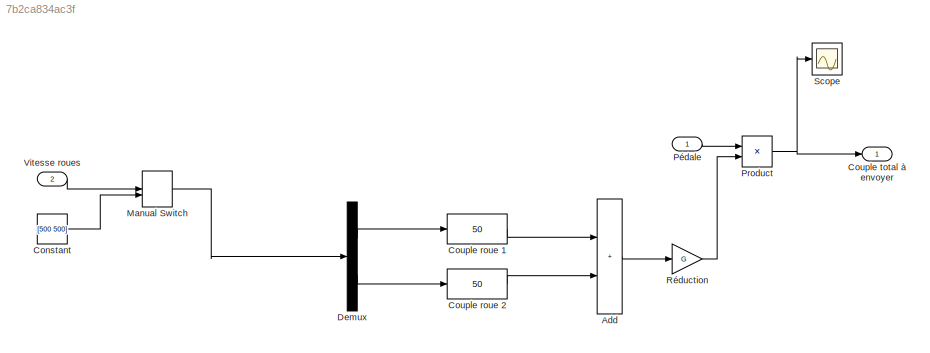
MODEL slx_7b2ca834ac3f
KIND model
CONFIG AbsTol = auto
CONFIG EnableMultiTasking = off
CONFIG FixedStep = Ts
CONFIG MaxStep = auto
CONFIG MinStep = auto
CONFIG RelTol = 1e-3
CONFIG SampleTimeConstraint = Unconstrained
CONFIG SolverName = FixedStepAuto
CONFIG StartTime = 0.0
CONFIG StopTime = 10.0
BLOCK [Sum] Add
  IconShape = rectangular
BLOCK [Constant] Constant
  Value = [500 500]
BLOCK [Fcn] Couple roue 1
  Expr = 50
BLOCK [Fcn] Couple roue 2
  Expr = 50
BLOCK [Outport] Couple total à envoyer
BLOCK [Demux] Demux
  Outputs = 2
BLOCK [ManualSwitch] Manual Switch
BLOCK [Product] Product
BLOCK [Inport] Pédale
BLOCK [Gain] Réduction
  Gain = G
BLOCK [Scope] Scope
  Floating = off
  NumInputPorts = 1
  ScopeSpecificationString = Simulink.scopes.TimeScopeBlockCfg('CurrentConfiguration', extmgr.ConfigurationSet(extmgr.Configuration('Core','General UI',true),extmgr.Configuration('Core','Source UI',true),extmgr.Configuration('Sources','WiredSimulink',true),extmgr.Configuration('Visuals','Time Domain',true,'SerializedDisplays',{struct('MinYLimReal','100.00000','MaxYLimReal','300.00000','YLabelReal','','MinYLimMag','100.00000',...<+1430ch>
BLOCK [Inport] Vitesse roues
  Port = 2
  PortDimensions = 2
LINE Add:1 -> Réduction:1
LINE Constant:1 -> Manual Switch:2
LINE Couple roue 1:1 -> Add:1
LINE Couple roue 2:1 -> Add:2
LINE Demux:1 -> Couple roue 1:1
LINE Demux:2 -> Couple roue 2:1
LINE Manual Switch:1 -> Demux:1
NET Product:1 -> Couple total à envoyer:1, Scope:1
LINE Pédale:1 -> Product:1
LINE Réduction:1 -> Product:2
LINE Vitesse roues:1 -> Manual Switch:1
note: NET lines group one-source signal fan-out (src -> all destinations, sorted); 1:1 wires keep LINE
